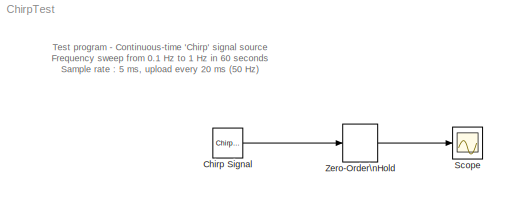
MODEL ChirpTest
KIND model
BLOCK [Reference] Chirp Signal  REF=simulink/Sources/Chirp Signal
  FunctionWithSeparateData = off
  Ports = [0, 1]
  RTWMemSecDataConstants = Inherit from model
  RTWMemSecDataInternal = Inherit from model
  RTWMemSecDataParameters = Inherit from model
  RTWMemSecFuncExecute = Inherit from model
  RTWMemSecFuncInitTerm = Inherit from model
  SID = 1
  ShowPortLabels = FromPortIcon
  SourceBlock = simulink/Sources/Chirp Signal
  SourceProductBaseCode = SL
  SourceProductName = Simulink
  SourceType = chirp
  SystemSampleTime = -1
  T = 60
  VectorParams1D = on
  f1 = 0.1
  f2 = 1
BLOCK [Scope] Scope
  Floating = off
  NumInputPorts = 1
  Ports = [1]
  SID = 2
  ScopeSpecificationString = C++SS(StrPVP('Location','[96, 143, 420, 382]'),StrPVP('Open','off'),MxPVP('AxesTitles',54,'struct(''axes1'',''%<SignalLabel>'')'),StrPVP('TimeRange','5'),StrPVP('DataFormat','StructureWithTime'),StrPVP('LimitDataPoints','on'),StrPVP('Decimation','1'),StrPVP('BlockParamSampleInput','off'))
BLOCK [ZeroOrderHold] Zero-Order\nHold
  SID = 3
  SampleTime = 0.02
ANNOTATION (root): Test program - Continuous-time 'Chirp' signal source\n Frequency sweep from 0.1 Hz to 1 Hz in 60 seconds\n Sample rate : 5 ms, upload every 20 ms (50 Hz)
LINE Chirp Signal:1 -> Zero-Order\nHold:1
LINE Zero-Order\nHold:1 -> Scope:1
